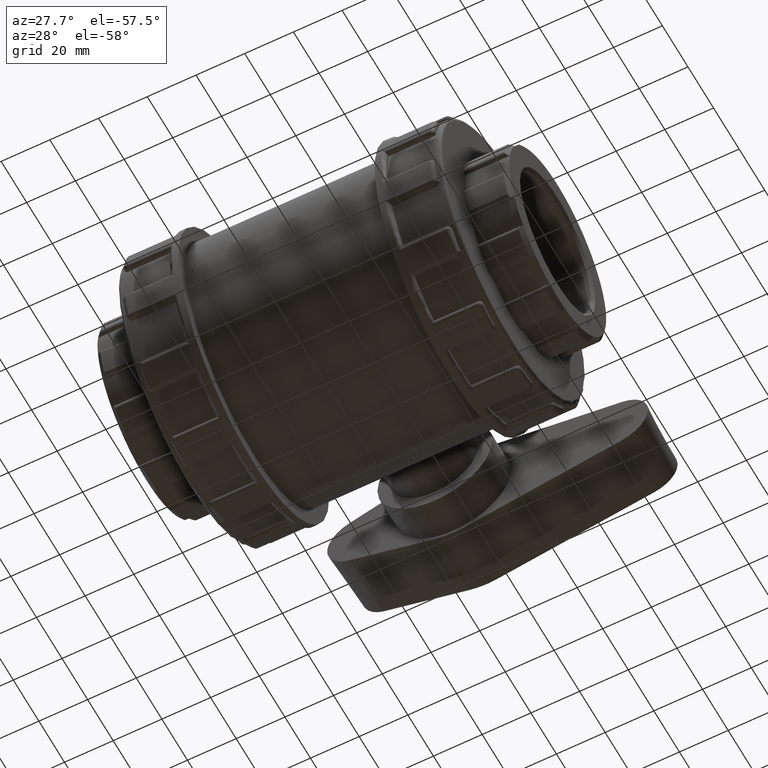
[diagram: clean part render]
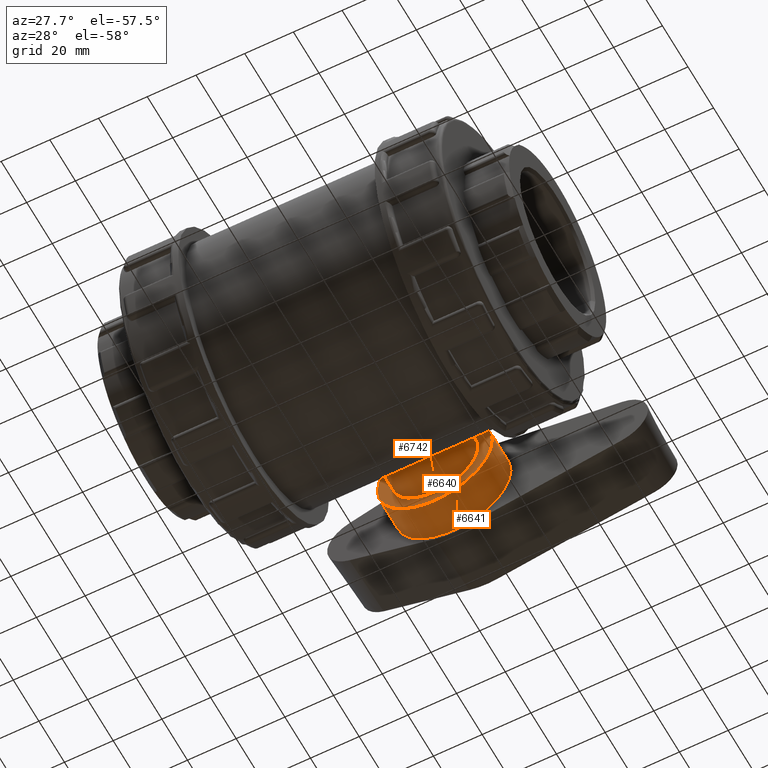
[diagram: same view with one multi-face feature highlighted, each face labeled with its STEP entity id]
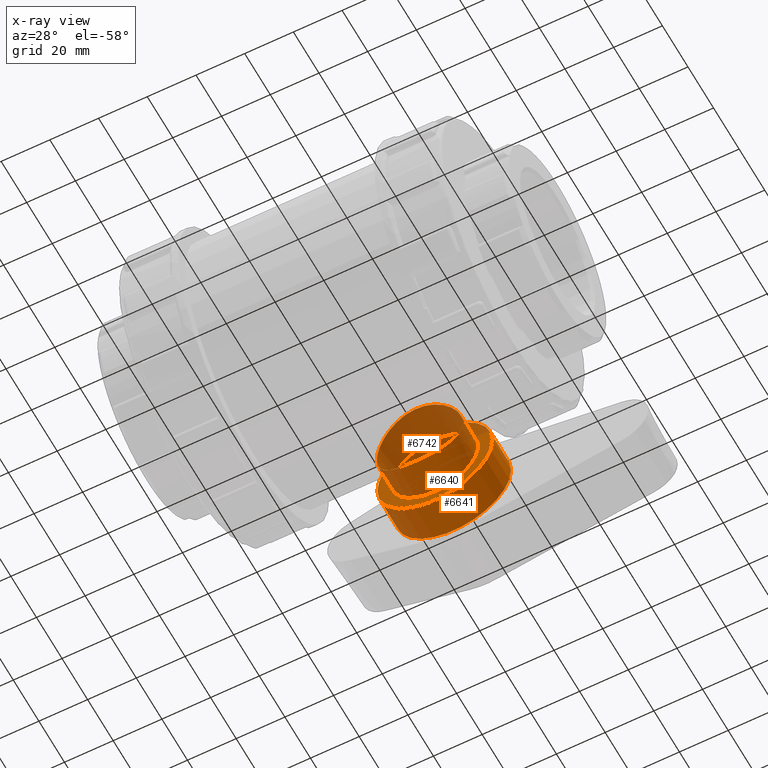
[diagram: x-ray of the same camera — body ghosted, the whole feature saturated]
A machine part, auxiliary view. The highlighted faces form ONE feature: a stepped (counterbored) hole: 2 coaxial cylindrical walls of radii 17.7 -> 23.6 mm joined by 1 annular planar shoulder face(s). The faces share edges in the B-rep.
The next image is the same camera in x-ray: the body ghosted and the whole hole feature saturated, so the bore chain is visible through the body.
Their STEP definitions:
[1] entity #6641 (Cylinder):
#203=FACE_BOUND('',#882,.T.);
#444=FACE_OUTER_BOUND('',#881,.T.);
#881=EDGE_LOOP('',(#4428));
#882=EDGE_LOOP('',(#4429));
#2130=CIRCLE('',#7096,23.6);
#2131=CIRCLE('',#7102,23.6);
#2657=VERTEX_POINT('',#10411);
#2658=VERTEX_POINT('',#10421);
#3318=EDGE_CURVE('',#2657,#2657,#2130,.T.);
#3322=EDGE_CURVE('',#2658,#2658,#2131,.T.);
#4428=ORIENTED_EDGE('',*,*,#3318,.T.);
#4429=ORIENTED_EDGE('',*,*,#3322,.T.);
#6431=CYLINDRICAL_SURFACE('',#7104,23.6);
#6641=ADVANCED_FACE('',(#444,#203),#6431,.T.);
#7096=AXIS2_PLACEMENT_3D('',#10412,#8119,#8120);
#7102=AXIS2_PLACEMENT_3D('',#10422,#8134,#8135);
#7104=AXIS2_PLACEMENT_3D('',#10425,#8138,#8139);
#8119=DIRECTION('center_axis',(4.48378053612687E-16,-1.,0.));
#8120=DIRECTION('ref_axis',(-1.,0.,0.));
#8134=DIRECTION('center_axis',(-2.97139982259774E-16,1.,0.));
#8135=DIRECTION('ref_axis',(1.,2.97139982259774E-16,0.));
#8138=DIRECTION('center_axis',(-2.97139982259774E-16,1.,0.));
#8139=DIRECTION('ref_axis',(-1.,0.,0.));
#10411=CARTESIAN_POINT('',(23.6,79.5,2.89016644598775E-15));
#10412=CARTESIAN_POINT('Origin',(-4.33824374099272E-15,79.5,0.));
#10421=CARTESIAN_POINT('',(-23.6,64.9,0.));
#10422=CARTESIAN_POINT('Origin',(-4.05584745280573E-30,64.9,0.));
#10425=CARTESIAN_POINT('Origin',(-6.10622663543837E-15,85.45,0.));
[2] entity #6742 (Cylinder):
#103=B_SPLINE_CURVE_WITH_KNOTS('',3,(#11388,#11389,#11390,#11391,#11392,
#11393,#11394,#11395,#11396,#11397,#11398,#11399,#11400,#11401,#11402,#11403,
#11404,#11405,#11406,#11407,#11408,#11409,#11410,#11411,#11412,#11413,#11414,
#11415,#11416,#11417,#11418,#11419,#11420,#11421,#11422,#11423,#11424,#11425,
#11426,#11427,#11428,#11429,#11430,#11431,#11432,#11433,#11434,#11435,#11436,
#11437,#11438,#11439,#11440,#11441,#11442,#11443,#11444,#11445,#11446,#11447,
#11448,#11449,#11450,#11451,#11452,#11453),.UNSPECIFIED.,.T.,.F.,(4,2,2,
2,2,2,2,2,2,2,2,2,2,2,2,2,2,2,2,2,2,2,2,2,2,2,2,2,2,2,2,2,4),(0.,0.336245290382962,
0.672490580765925,1.00873587114889,1.34498116153185,1.68107050108967,2.01715984064749,
2.3532491802053,2.68933851976312,3.02542785932094,3.36151719887876,3.69760653843658,
4.0336958779944,4.36994116837736,4.70618645876032,5.04243174914328,5.37867703952625,
5.71492232990921,6.05116762029217,6.38741291067513,6.7236582010581,7.05974754061591,
7.39583688017373,7.73192621973155,8.06801555928937,8.40410489884719,8.740194238405,
9.07628357796282,9.41237291752064,9.7486182079036,10.0848634982866,10.4211087886695,
10.7573540790525),.UNSPECIFIED.);
#204=FACE_BOUND('',#984,.T.);
#545=FACE_OUTER_BOUND('',#983,.T.);
#983=EDGE_LOOP('',(#4830));
#984=EDGE_LOOP('',(#4831));
#2132=CIRCLE('',#7103,17.7);
#2659=VERTEX_POINT('',#10423);
#2820=VERTEX_POINT('',#11387);
#3323=EDGE_CURVE('',#2659,#2659,#2132,.T.);
#3584=EDGE_CURVE('',#2820,#2820,#103,.T.);
#4830=ORIENTED_EDGE('',*,*,#3323,.T.);
#4831=ORIENTED_EDGE('',*,*,#3584,.F.);
#6512=CYLINDRICAL_SURFACE('',#7345,17.7);
#6742=ADVANCED_FACE('',(#545,#204),#6512,.T.);
#7103=AXIS2_PLACEMENT_3D('',#10424,#8136,#8137);
#7345=AXIS2_PLACEMENT_3D('',#11386,#8700,#8701);
#8136=DIRECTION('center_axis',(0.,-1.,0.));
#8137=DIRECTION('ref_axis',(1.,0.,0.));
#8700=DIRECTION('center_axis',(0.,-1.,0.));
#8701=DIRECTION('ref_axis',(1.,0.,0.));
#10423=CARTESIAN_POINT('',(-17.7,64.9,2.16762483449082E-15));
#10424=CARTESIAN_POINT('Origin',(0.,64.9,0.));
#11386=CARTESIAN_POINT('Origin',(0.,64.9,0.));
#11387=CARTESIAN_POINT('',(0.,50.0631601080076,-17.7));
#11388=CARTESIAN_POINT('Ctrl Pts',(5.55111512312578E-16,50.0631601080076,
-17.7));
#11389=CARTESIAN_POINT('Ctrl Pts',(1.12081763460988,50.0631601080076,-17.7));
#11390=CARTESIAN_POINT('Ctrl Pts',(2.27687772919931,50.1018451105984,-17.5918268567363));
#11391=CARTESIAN_POINT('Ctrl Pts',(4.57070639848232,50.2583532171534,-17.1395795589895));
#11392=CARTESIAN_POINT('Ctrl Pts',(5.70851151904108,50.3760176190892,-16.7956358700401));
#11393=CARTESIAN_POINT('Ctrl Pts',(7.88606469651454,50.6689847436252,-15.8899496000043));
#11394=CARTESIAN_POINT('Ctrl Pts',(8.92771095681646,50.8442038303786,-15.3274885964628));
#11395=CARTESIAN_POINT('Ctrl Pts',(10.8520078549348,51.217136922484,-14.031031865714));
#11396=CARTESIAN_POINT('Ctrl Pts',(11.7346562925055,51.4144715108478,-13.2969237614983));
#11397=CARTESIAN_POINT('Ctrl Pts',(13.2965614710695,51.7932891595784,-11.7350185829343));
#11398=CARTESIAN_POINT('Ctrl Pts',(14.0306259616215,51.9883778927363,-10.8525416477899));
#11399=CARTESIAN_POINT('Ctrl Pts',(15.3272404619195,52.3531973346987,-8.9281479018068));
#11400=CARTESIAN_POINT('Ctrl Pts',(15.8898868402512,52.5225961106506,-7.88623311093684));
#11401=CARTESIAN_POINT('Ctrl Pts',(16.7957811122264,52.8037201142114,-5.7081447895184));
#11402=CARTESIAN_POINT('Ctrl Pts',(17.1397484551683,52.9154547566777,-4.57008111815937));
#11403=CARTESIAN_POINT('Ctrl Pts',(17.5919201744639,53.063641322684,-2.27617290878257));
#11404=CARTESIAN_POINT('Ctrl Pts',(17.7,53.1,-1.12029779852606));
#11405=CARTESIAN_POINT('Ctrl Pts',(17.7,53.1,1.12029779852606));
#11406=CARTESIAN_POINT('Ctrl Pts',(17.5919201744639,53.063641322684,2.27617290878257));
#11407=CARTESIAN_POINT('Ctrl Pts',(17.1397484551683,52.9154547566777,4.57008111815937));
#11408=CARTESIAN_POINT('Ctrl Pts',(16.7957811122264,52.8037201142114,5.70814478951839));
#11409=CARTESIAN_POINT('Ctrl Pts',(15.8898868402512,52.5225961106506,7.88623311093684));
#11410=CARTESIAN_POINT('Ctrl Pts',(15.3272404619195,52.3531973346987,8.9281479018068));
#11411=CARTESIAN_POINT('Ctrl Pts',(14.0306259616215,51.9883778927363,10.8525416477899));
#11412=CARTESIAN_POINT('Ctrl Pts',(13.2965614710695,51.7932891595784,11.7350185829343));
#11413=CARTESIAN_POINT('Ctrl Pts',(11.7346562925055,51.4144715108478,13.2969237614983));
#11414=CARTESIAN_POINT('Ctrl Pts',(10.8520078549348,51.2171369224841,14.031031865714));
#11415=CARTESIAN_POINT('Ctrl Pts',(8.92771095681646,50.8442038303786,15.3274885964628));
#11416=CARTESIAN_POINT('Ctrl Pts',(7.88606469651454,50.6689847436252,15.8899496000043));
#11417=CARTESIAN_POINT('Ctrl Pts',(5.70851151904108,50.3760176190892,16.7956358700401));
#11418=CARTESIAN_POINT('Ctrl Pts',(4.57070639848232,50.2583532171534,17.1395795589895));
#11419=CARTESIAN_POINT('Ctrl Pts',(2.2768777291993,50.1018451105984,17.5918268567363));
#11420=CARTESIAN_POINT('Ctrl Pts',(1.12081763460987,50.0631601080076,17.7));
#11421=CARTESIAN_POINT('Ctrl Pts',(-1.12081763460987,50.0631601080076,17.7));
#11422=CARTESIAN_POINT('Ctrl Pts',(-2.2768777291993,50.1018451105984,17.5918268567363));
#11423=CARTESIAN_POINT('Ctrl Pts',(-4.57070639848232,50.2583532171534,17.1395795589895));
#11424=CARTESIAN_POINT('Ctrl Pts',(-5.70851151904108,50.3760176190892,16.7956358700401));
#11425=CARTESIAN_POINT('Ctrl Pts',(-7.88606469651454,50.6689847436252,15.8899496000043));
#11426=CARTESIAN_POINT('Ctrl Pts',(-8.92771095681647,50.8442038303786,15.3274885964628));
#11427=CARTESIAN_POINT('Ctrl Pts',(-10.8520078549348,51.217136922484,14.031031865714));
#11428=CARTESIAN_POINT('Ctrl Pts',(-11.7346562925055,51.4144715108478,13.2969237614983));
#11429=CARTESIAN_POINT('Ctrl Pts',(-13.2965614710695,51.7932891595784,11.7350185829343));
#11430=CARTESIAN_POINT('Ctrl Pts',(-14.0306259616215,51.9883778927363,10.8525416477899));
#11431=CARTESIAN_POINT('Ctrl Pts',(-15.3272404619195,52.3531973346987,8.9281479018068));
#11432=CARTESIAN_POINT('Ctrl Pts',(-15.8898868402512,52.5225961106506,7.88623311093684));
#11433=CARTESIAN_POINT('Ctrl Pts',(-16.7957811122264,52.8037201142114,5.7081447895184));
#11434=CARTESIAN_POINT('Ctrl Pts',(-17.1397484551683,52.9154547566777,4.57008111815937));
#11435=CARTESIAN_POINT('Ctrl Pts',(-17.5919201744639,53.063641322684,2.27617290878257));
#11436=CARTESIAN_POINT('Ctrl Pts',(-17.7,53.1,1.12029779852606));
#11437=CARTESIAN_POINT('Ctrl Pts',(-17.7,53.1,-1.12029779852606));
#11438=CARTESIAN_POINT('Ctrl Pts',(-17.5919201744639,53.063641322684,-2.27617290878257));
#11439=CARTESIAN_POINT('Ctrl Pts',(-17.1397484551683,52.9154547566777,-4.57008111815936));
#11440=CARTESIAN_POINT('Ctrl Pts',(-16.7957811122264,52.8037201142114,-5.70814478951839));
#11441=CARTESIAN_POINT('Ctrl Pts',(-15.8898868402512,52.5225961106506,-7.88623311093683));
#11442=CARTESIAN_POINT('Ctrl Pts',(-15.3272404619195,52.3531973346987,-8.92814790180679));
#11443=CARTESIAN_POINT('Ctrl Pts',(-14.0306259616215,51.9883778927363,-10.8525416477899));
#11444=CARTESIAN_POINT('Ctrl Pts',(-13.2965614710695,51.7932891595784,-11.7350185829343));
#11445=CARTESIAN_POINT('Ctrl Pts',(-11.7346562925055,51.4144715108478,-13.2969237614983));
#11446=CARTESIAN_POINT('Ctrl Pts',(-10.8520078549348,51.2171369224841,-14.031031865714));
#11447=CARTESIAN_POINT('Ctrl Pts',(-8.92771095681645,50.8442038303786,-15.3274885964628));
#11448=CARTESIAN_POINT('Ctrl Pts',(-7.88606469651453,50.6689847436252,-15.8899496000043));
#11449=CARTESIAN_POINT('Ctrl Pts',(-5.70851151904107,50.3760176190892,-16.7956358700401));
#11450=CARTESIAN_POINT('Ctrl Pts',(-4.57070639848232,50.2583532171534,-17.1395795589895));
#11451=CARTESIAN_POINT('Ctrl Pts',(-2.2768777291993,50.1018451105984,-17.5918268567363));
#11452=CARTESIAN_POINT('Ctrl Pts',(-1.12081763460987,50.0631601080076,-17.7));
#11453=CARTESIAN_POINT('Ctrl Pts',(-2.77555756156289E-16,50.0631601080076,
-17.7));
[3] entity #6640 (Plane):
#202=FACE_BOUND('',#880,.T.);
#235=PLANE('',#7101);
#443=FACE_OUTER_BOUND('',#879,.T.);
#879=EDGE_LOOP('',(#4426));
#880=EDGE_LOOP('',(#4427));
#2131=CIRCLE('',#7102,23.6);
#2132=CIRCLE('',#7103,17.7);
#2658=VERTEX_POINT('',#10421);
#2659=VERTEX_POINT('',#10423);
#3322=EDGE_CURVE('',#2658,#2658,#2131,.T.);
#3323=EDGE_CURVE('',#2659,#2659,#2132,.T.);
#4426=ORIENTED_EDGE('',*,*,#3322,.F.);
#4427=ORIENTED_EDGE('',*,*,#3323,.F.);
#6640=ADVANCED_FACE('',(#443,#202),#235,.T.);
#7101=AXIS2_PLACEMENT_3D('',#10420,#8132,#8133);
#7102=AXIS2_PLACEMENT_3D('',#10422,#8134,#8135);
#7103=AXIS2_PLACEMENT_3D('',#10424,#8136,#8137);
#8132=DIRECTION('center_axis',(2.97139982259774E-16,-1.,0.));
#8133=DIRECTION('ref_axis',(0.,0.,-1.));
#8134=DIRECTION('center_axis',(-2.97139982259774E-16,1.,0.));
#8135=DIRECTION('ref_axis',(1.,2.97139982259774E-16,0.));
#8136=DIRECTION('center_axis',(0.,-1.,0.));
#8137=DIRECTION('ref_axis',(1.,0.,0.));
#10420=CARTESIAN_POINT('Origin',(-23.6,64.9,0.));
#10421=CARTESIAN_POINT('',(-23.6,64.9,0.));
#10422=CARTESIAN_POINT('Origin',(-4.05584745280573E-30,64.9,0.));
#10423=CARTESIAN_POINT('',(-17.7,64.9,2.16762483449082E-15));
#10424=CARTESIAN_POINT('Origin',(0.,64.9,0.));